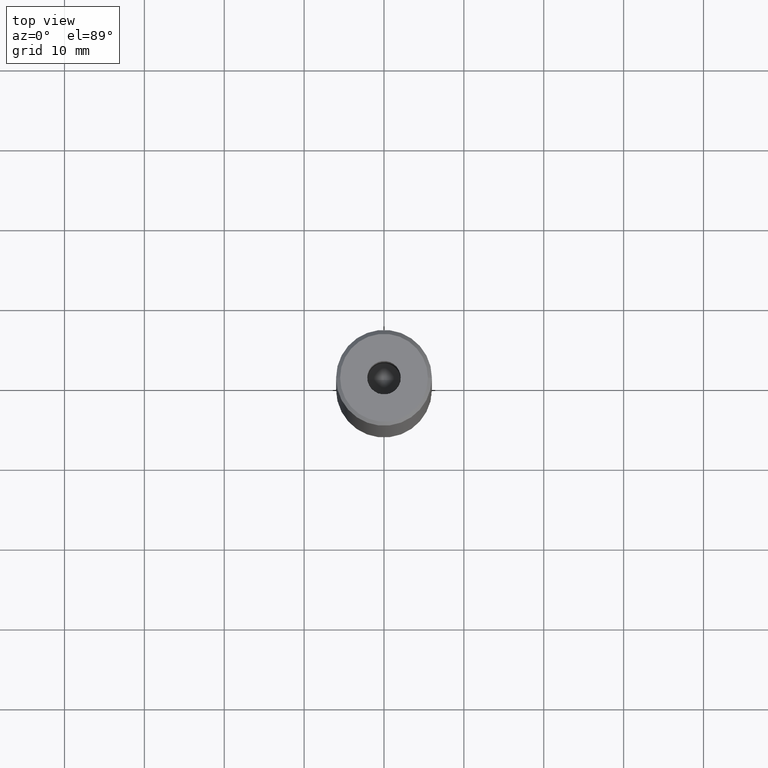
[diagram: clean part render]
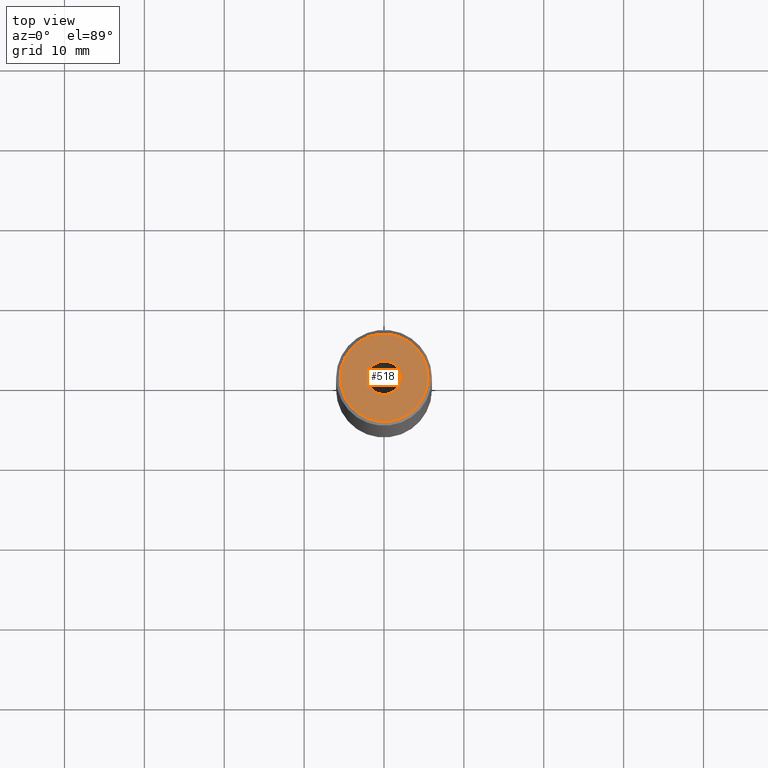
[diagram: same view with one face highlighted and labeled with its STEP entity id]
A machine part, top view. The second image highlights one B-rep face of the part: STEP entity #518.
In plain terms, the highlighted planar face has unit normal (0, -0, 1).
Its self-contained STEP definition (entity closure, byte-faithful):
#25 = CARTESIAN_POINT ( 'NONE',  ( 0.000000000000000000, 0.000000000000000000, -1.990051048614449116E-16 ) ) ;
#27 = CARTESIAN_POINT ( 'NONE',  ( -2.099999999999998757, 2.571758278209439985E-16, -1.990051048614449116E-16 ) ) ;
#35 = VERTEX_POINT ( 'NONE', #184 ) ;
#56 = AXIS2_PLACEMENT_3D ( 'NONE', #413, #424, #100 ) ;
#89 = CARTESIAN_POINT ( 'NONE',  ( 0.000000000000000000, 0.000000000000000000, 0.000000000000000000 ) ) ;
#100 = DIRECTION ( 'NONE',  ( 1.000000000000000000, 0.000000000000000000, 0.000000000000000000 ) ) ;
#123 = AXIS2_PLACEMENT_3D ( 'NONE', #25, #150, #519 ) ;
#136 = FACE_OUTER_BOUND ( 'NONE', #543, .T. ) ;
#150 = DIRECTION ( 'NONE',  ( -0.000000000000000000, -0.000000000000000000, 1.000000000000000000 ) ) ;
#164 = EDGE_CURVE ( 'NONE', #562, #278, #169, .T. ) ;
#165 = DIRECTION ( 'NONE',  ( 1.000000000000000000, 0.000000000000000000, 0.000000000000000000 ) ) ;
#169 = CIRCLE ( 'NONE', #56, 5.500000000000004441 ) ;
#178 = DIRECTION ( 'NONE',  ( 0.000000000000000000, -0.000000000000000000, 1.000000000000000000 ) ) ;
#184 = CARTESIAN_POINT ( 'NONE',  ( 2.099999999999998757, 0.000000000000000000, -1.990051048614449116E-16 ) ) ;
#203 = ORIENTED_EDGE ( 'NONE', *, *, #394, .F. ) ;
#214 = DIRECTION ( 'NONE',  ( -0.000000000000000000, -0.000000000000000000, 1.000000000000000000 ) ) ;
#225 = CARTESIAN_POINT ( 'NONE',  ( 5.500000000000004441, 7.041719095097283838E-16, 0.000000000000000000 ) ) ;
#235 = EDGE_CURVE ( 'NONE', #35, #360, #389, .T. ) ;
#238 = AXIS2_PLACEMENT_3D ( 'NONE', #484, #481, #165 ) ;
#263 = EDGE_LOOP ( 'NONE', ( #345, #203 ) ) ;
#265 = AXIS2_PLACEMENT_3D ( 'NONE', #572, #214, #576 ) ;
#267 = DIRECTION ( 'NONE',  ( 1.000000000000000000, 0.000000000000000000, 0.000000000000000000 ) ) ;
#273 = ORIENTED_EDGE ( 'NONE', *, *, #374, .T. ) ;
#278 = VERTEX_POINT ( 'NONE', #423 ) ;
#297 = ORIENTED_EDGE ( 'NONE', *, *, #164, .T. ) ;
#339 = CIRCLE ( 'NONE', #238, 2.099999999999998757 ) ;
#345 = ORIENTED_EDGE ( 'NONE', *, *, #235, .F. ) ;
#360 = VERTEX_POINT ( 'NONE', #27 ) ;
#374 = EDGE_CURVE ( 'NONE', #278, #562, #475, .T. ) ;
#389 = CIRCLE ( 'NONE', #123, 2.099999999999998757 ) ;
#391 = AXIS2_PLACEMENT_3D ( 'NONE', #89, #178, #267 ) ;
#394 = EDGE_CURVE ( 'NONE', #360, #35, #339, .T. ) ;
#413 = CARTESIAN_POINT ( 'NONE',  ( 0.000000000000000000, 0.000000000000000000, 0.000000000000000000 ) ) ;
#423 = CARTESIAN_POINT ( 'NONE',  ( -5.500000000000004441, 0.000000000000000000, 0.000000000000000000 ) ) ;
#424 = DIRECTION ( 'NONE',  ( -0.000000000000000000, -0.000000000000000000, 1.000000000000000000 ) ) ;
#475 = CIRCLE ( 'NONE', #265, 5.500000000000004441 ) ;
#481 = DIRECTION ( 'NONE',  ( -0.000000000000000000, -0.000000000000000000, 1.000000000000000000 ) ) ;
#484 = CARTESIAN_POINT ( 'NONE',  ( 0.000000000000000000, 0.000000000000000000, -1.990051048614449116E-16 ) ) ;
#492 = PLANE ( 'NONE',  #391 ) ;
#518 = ADVANCED_FACE ( 'NONE', ( #552, #136 ), #492, .T. ) ;
#519 = DIRECTION ( 'NONE',  ( 1.000000000000000000, 0.000000000000000000, 0.000000000000000000 ) ) ;
#543 = EDGE_LOOP ( 'NONE', ( #273, #297 ) ) ;
#552 = FACE_BOUND ( 'NONE', #263, .T. ) ;
#562 = VERTEX_POINT ( 'NONE', #225 ) ;
#572 = CARTESIAN_POINT ( 'NONE',  ( 0.000000000000000000, 0.000000000000000000, 0.000000000000000000 ) ) ;
#576 = DIRECTION ( 'NONE',  ( 1.000000000000000000, 0.000000000000000000, 0.000000000000000000 ) ) ;